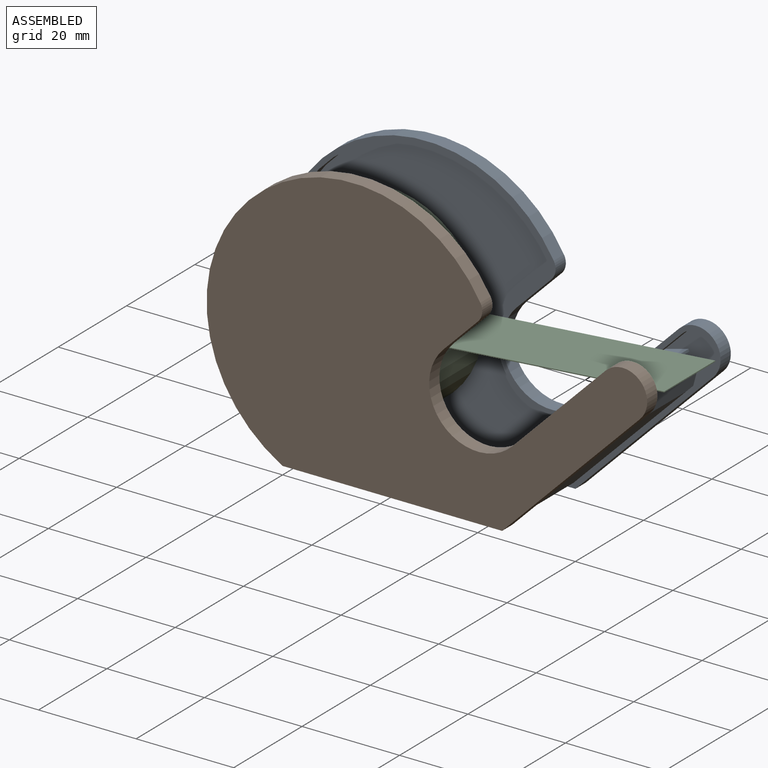
[diagram: assembled view]
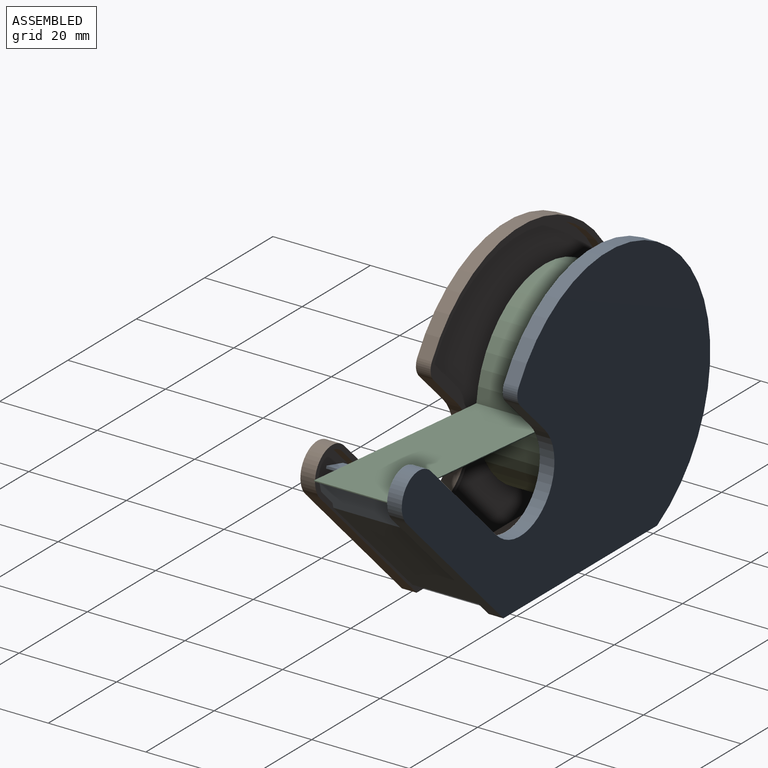
[diagram: assembled view, second angle]
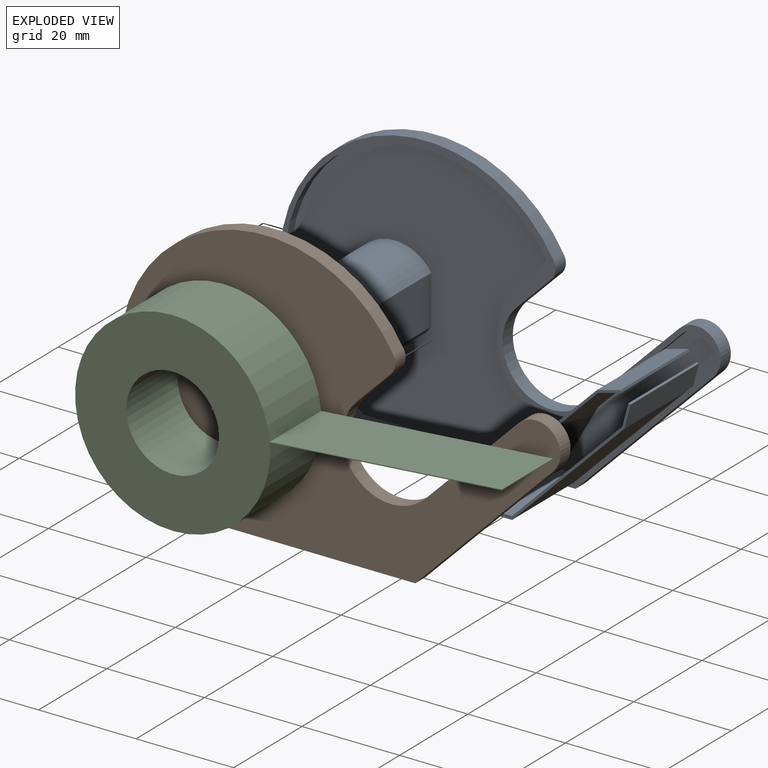
[diagram: exploded view]
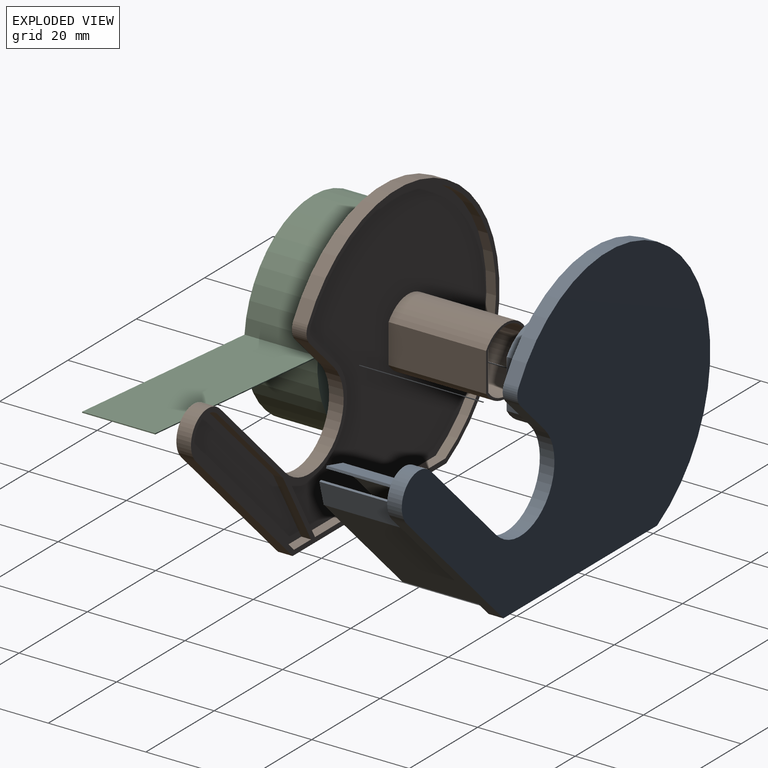
[diagram: exploded view, second angle]
ASSEMBLY  parts=3 mates=2
PART A: 42 faces, bbox 90.3x21x56.3 mm
  f0: plane 4.95x4.95mm, normal (0.71,0,-0.71), area 14mm2, adj f2,f13,f16,f31
  f1: plane 60.33x54.3mm, normal (0,-1,0), area 2136.2mm2, adj f3,f14,f17,f18,f19,f20,f21,f24
  f2: plane 34.11x33.19mm, normal (0,-1,0), area 285.8mm2, adj f0,f15,f16,f31,f32,f33,f34,f35
  f3: cylinder r=11mm len=18.78mm, axis (0,-1,0), area 63.8mm2, adj f1,f13,f17,f20
  f4: plane 45x3mm, normal (0,0,-1), area 135mm2, adj f5,f11,f12,f13
  f5: plane 28.28x28.28mm, normal (0.71,0,-0.71), area 120mm2, adj f4,f6,f12,f13
  f6: cylinder r=5mm len=8.54mm, axis (0,-1,0), area 47.1mm2, adj f5,f7,f12,f13
  f7: plane 19.09x19.09mm, normal (-0.71,0,0.71), area 81mm2, adj f6,f8,f12,f13
  f8: cylinder r=10mm len=17.07mm, axis (0,-1,0), area 94.2mm2, adj f7,f9,f12,f13
  f9: plane 7.07x7.07mm, normal (0.71,0,-0.71), area 30mm2, adj f8,f10,f12,f13
  f10: cylinder r=3mm len=3.6mm, axis (0,-1,0), area 11.7mm2, adj f9,f11,f12,f13
  f11: cylinder r=30mm len=56.3mm, axis (0,-1,0), area 332.6mm2, adj f4,f10,f12,f13
  f12: plane 90.32x56.3mm, normal (0,1,0), area 3004.7mm2, adj f4,f5,f6,f7,f8,f9,f10,f11
  f13: plane 90.32x56.3mm, normal (0,-1,0), area 296.4mm2, adj f0,f3,f4,f5,f6,f7,f8,f9
  f14: plane 38.18x2mm, normal (0,0,1), area 76.4mm2, adj f1,f13,f19,f20
  f15: plane 4.93x4.93mm, normal (-0.71,0,0.71), area 14mm2, adj f2,f13,f16,f32
  f16: cylinder r=4mm len=6.83mm, axis (0,-1,0), area 25.1mm2, adj f0,f2,f13,f15
  f17: plane 7.07x7.07mm, normal (-0.71,0,0.71), area 20mm2, adj f1,f3,f13,f18
  f18: cylinder r=2mm len=2.4mm, axis (0,-1,0), area 5.2mm2, adj f1,f13,f17,f19
  f19: cylinder r=29mm len=54.3mm, axis (0,-1,0), area 213.8mm2, adj f1,f13,f14,f18
  f20: plane 12.93x7.32mm, normal (-0.87,0,0.49), area 29.7mm2, adj f1,f3,f13,f14
  f21: cylinder r=9mm len=20mm, axis (0,1,0), area 918.9mm2, adj f1,f24,f25
  f22: cylinder r=8.5mm len=20mm, axis (0,1,0), area 854.3mm2, adj f23,f25,f26
  f23: plane 20x10mm, normal (-1,0,0), area 200mm2, adj f22,f25,f26
  f24: plane 20x10mm, normal (1,0,0), area 200mm2, adj f1,f21,f25
  f25: plane 18x16.48mm, normal (0,-1,0), area 28.3mm2, adj f21,f22,f23,f24
  f26: plane 17x15.37mm, normal (0,-1,0), area 215.9mm2, adj f22,f23
  f27: plane 18x14.14mm, normal (-0.71,0,0.71), area 360mm2, adj f13,f28,f31,f41
  f28: plane 18x14.56mm, normal (-0.87,0,0.49), area 301.1mm2, adj f13,f27,f29,f41
  f29: plane 18x5mm, normal (0,0,-1), area 90mm2, adj f13,f28,f30,f41
  f30: plane 23.06x23.06mm, normal (0.71,0,-0.71), area 587mm2, adj f13,f29,f32,f41
  f31: plane 20x4.83mm, normal (-0.26,0,0.97), area 100mm2, adj f0,f2,f27,f40,f41
  f32: plane 20x4.8mm, normal (0.97,0,-0.26), area 99.5mm2, adj f2,f15,f30,f33,f41
  f33: plane 20x0.48mm, normal (0.26,0,0.97), area 10mm2, adj f2,f32,f34,f41
  f34: plane 20x4.7mm, normal (-0.97,0,0.26), area 97.3mm2, adj f2,f33,f35,f41
  f35: plane 22.6x22.58mm, normal (-0.71,0,0.71), area 639mm2, adj f2,f34,f36,f41
  f36: plane 20x4.03mm, normal (0,0,1), area 80.5mm2, adj f2,f35,f37,f41
  f37: plane 20x13.54mm, normal (0.87,0,-0.49), area 311.3mm2, adj f2,f36,f38,f41
  f38: plane 20x14mm, normal (0.71,0,-0.71), area 396mm2, adj f2,f37,f39,f41
  f39: plane 20x4.7mm, normal (0.26,0,-0.97), area 97.3mm2, adj f2,f38,f40,f41
  f40: plane 20x0.48mm, normal (0.97,0,0.26), area 10mm2, adj f2,f31,f39,f41
  f41: plane 29.99x29.35mm, normal (0,-1,0), area 42.1mm2, adj f27,f28,f29,f30,f31,f32,f33,f34
PART B: 29 faces, bbox 90.3x21x56.3 mm
  f0: plane 60.33x54.3mm, normal (0,1,0), area 2233.3mm2, adj f3,f14,f18,f19,f20,f22,f23,f26
  f1: plane 34.82x34.16mm, normal (0,1,0), area 327.9mm2, adj f2,f15,f16,f17,f21
  f2: plane 5x2mm, normal (0,0,1), area 10mm2, adj f1,f13,f15,f21
  f3: cylinder r=11mm len=18.78mm, axis (0,1,0), area 63.8mm2, adj f0,f13,f18,f22
  f4: plane 45x3mm, normal (0,0,-1), area 135mm2, adj f5,f11,f12,f13
  f5: plane 28.28x28.28mm, normal (0.71,0,-0.71), area 120mm2, adj f4,f6,f12,f13
  f6: cylinder r=5mm len=8.54mm, axis (0,1,0), area 47.1mm2, adj f5,f7,f12,f13
  f7: plane 19.09x19.09mm, normal (-0.71,0,0.71), area 81mm2, adj f6,f8,f12,f13
  f8: cylinder r=10mm len=17.07mm, axis (0,1,0), area 94.2mm2, adj f7,f9,f12,f13
  f9: plane 7.07x7.07mm, normal (0.71,0,-0.71), area 30mm2, adj f8,f10,f12,f13
  f10: cylinder r=3mm len=3.6mm, axis (0,1,0), area 11.7mm2, adj f9,f11,f12,f13
  f11: cylinder r=30mm len=56.3mm, axis (0,1,0), area 332.6mm2, adj f4,f10,f12,f13
  f12: plane 90.32x56.3mm, normal (0,-1,0), area 3004.7mm2, adj f4,f5,f6,f7,f8,f9,f10,f11
  f13: plane 90.32x56.3mm, normal (0,1,0), area 296.4mm2, adj f2,f3,f4,f5,f6,f7,f8,f9
  f14: plane 38.18x2mm, normal (0,0,1), area 76.4mm2, adj f0,f13,f20,f22
  f15: plane 27.99x27.99mm, normal (-0.71,0,0.71), area 79.2mm2, adj f1,f2,f13,f16
  f16: cylinder r=4mm len=6.83mm, axis (0,1,0), area 25.1mm2, adj f1,f13,f15,f17
  f17: plane 19.09x19.09mm, normal (0.71,0,-0.71), area 54mm2, adj f1,f13,f16,f21
  f18: plane 7.07x7.07mm, normal (-0.71,0,0.71), area 20mm2, adj f0,f3,f13,f19
  f19: cylinder r=2mm len=2.4mm, axis (0,1,0), area 5.2mm2, adj f0,f13,f18,f20
  f20: cylinder r=29mm len=54.3mm, axis (0,1,0), area 213.8mm2, adj f0,f13,f14,f19
  f21: plane 14.56x8.24mm, normal (0.87,0,-0.49), area 33.5mm2, adj f1,f2,f13,f17
  f22: plane 12.93x7.32mm, normal (-0.87,0,0.49), area 29.7mm2, adj f0,f3,f13,f14
  f23: cylinder r=7mm len=20mm, axis (0,-1,0), area 709.3mm2, adj f0,f26,f27
  f24: cylinder r=6.5mm len=20mm, axis (0,-1,0), area 644.5mm2, adj f25,f27,f28
  f25: plane 20x8mm, normal (-1,0,0), area 160mm2, adj f24,f27,f28
  f26: plane 20x8mm, normal (1,0,0), area 160mm2, adj f0,f23,f27
  f27: plane 14x12.74mm, normal (0,1,0), area 21.9mm2, adj f23,f24,f25,f26
  f28: plane 13x11.62mm, normal (0,1,0), area 125.2mm2, adj f24,f25
PART C: 7 faces, bbox 87.7x15x40 mm
  f0: cylinder r=9.5mm len=19mm, axis (0,1,0), area 895.4mm2, adj f2,f3
  f1: cylinder r=20mm len=40mm, axis (0,1,0), area 1882mm2, adj f2,f3,f4,f5
  f2: plane 87.7x40mm, normal (0,-1,0), area 982.6mm2, adj f0,f1,f4,f5,f6
  f3: plane 87.7x40mm, normal (0,1,0), area 982.6mm2, adj f0,f1,f4,f5,f6
  f4: plane 47.7x15mm, normal (0,0,1), area 715.5mm2, adj f1,f2,f3,f6
  f5: plane 47.7x15mm, normal (0,0,-1), area 715.5mm2, adj f1,f2,f3,f6
  f6: plane 15x0.2mm, normal (-1,0,0), area 3mm2, adj f2,f3,f4,f5
PLACE A rot(axis=(-0.02,-1,0.02),0deg) t=(1.74,19,1)mm
PLACE B t=(0,3,0)mm
PLACE C rot(axis=(0,1,0),175.3deg) t=(8.31,18.5,27)mm
MATE revolute C.f1 <-> A.f21  axis (0,1,0) through (8.31,11,27)mm
MATE slider B.f23 <-> A.f21  axis (0,-1,0) through (8.31,21,27)mm
